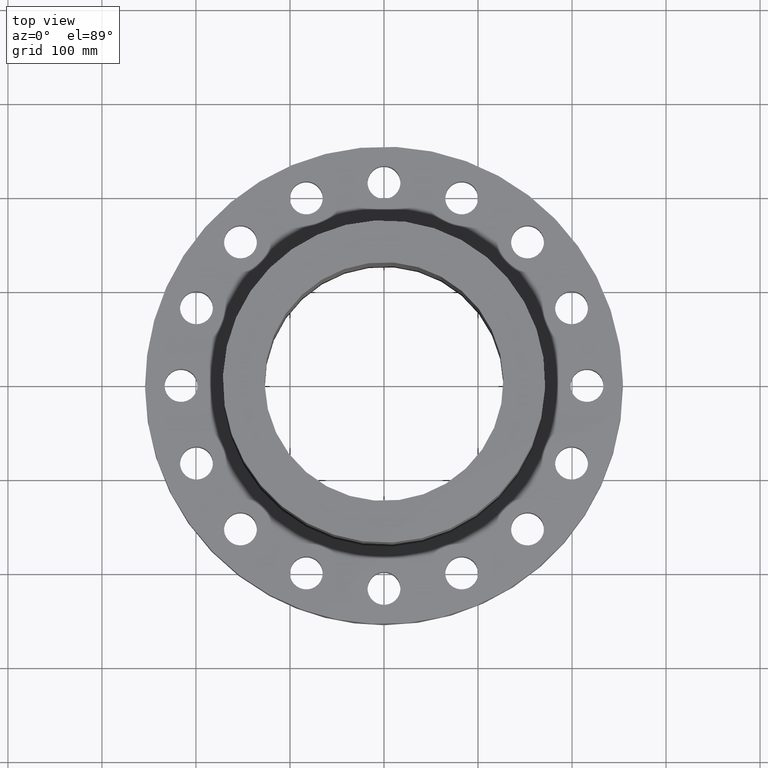
[diagram: clean part render]
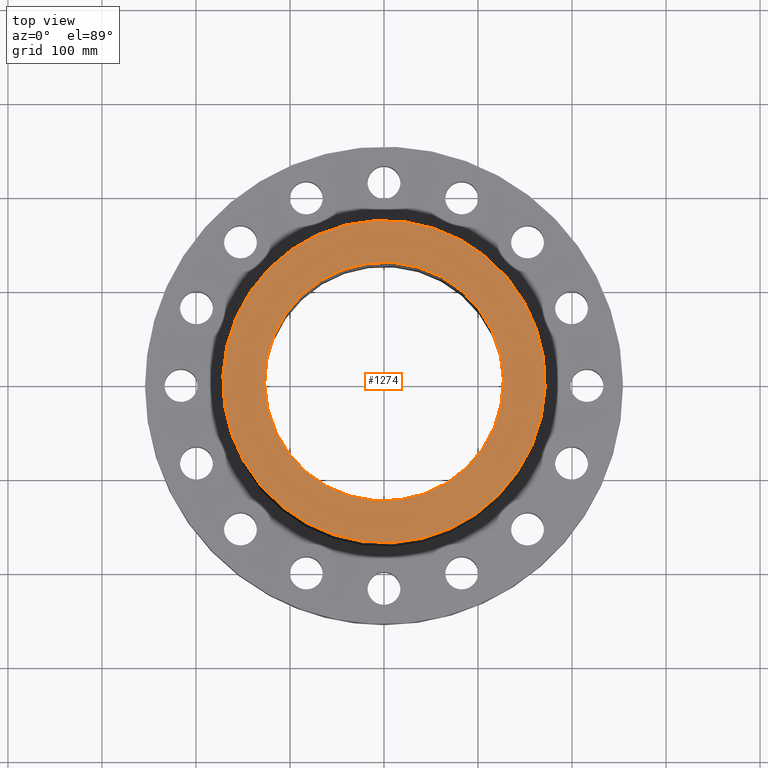
[diagram: same view with one face highlighted and labeled with its STEP entity id]
A machine part, top view. The second image highlights one B-rep face of the part: STEP entity #1274.
In plain terms, the highlighted planar face has unit normal (0, 0, -1).
Its self-contained STEP definition (entity closure, byte-faithful):
#515=AXIS2_PLACEMENT_3D('Circle Axis2P3D',#513,#514,$) ;
#534=AXIS2_PLACEMENT_3D('Circle Axis2P3D',#532,#533,$) ;
#1250=AXIS2_PLACEMENT_3D('Plane Axis2P3D',#1247,#1248,#1249) ;
#1258=AXIS2_PLACEMENT_3D('Circle Axis2P3D',#1256,#1257,$) ;
#1267=AXIS2_PLACEMENT_3D('Circle Axis2P3D',#1265,#1266,$) ;
#510=CARTESIAN_POINT('Vertex',(3.23612238559,5.92368229278,11.75)) ;
#513=CARTESIAN_POINT('Axis2P3D Location',(0.,0.,11.75)) ;
#517=CARTESIAN_POINT('Vertex',(-3.23612238559,-5.92368229278,11.75)) ;
#532=CARTESIAN_POINT('Axis2P3D Location',(0.,0.,11.75)) ;
#1247=CARTESIAN_POINT('Axis2P3D Location',(0.,6.75000000003,11.75)) ;
#1256=CARTESIAN_POINT('Axis2P3D Location',(0.,0.,11.75)) ;
#1260=CARTESIAN_POINT('Vertex',(-2.39712769303,-4.38791280947,11.75)) ;
#1262=CARTESIAN_POINT('Vertex',(2.39712769303,4.38791280947,11.75)) ;
#1265=CARTESIAN_POINT('Axis2P3D Location',(0.,0.,11.75)) ;
#514=DIRECTION('Axis2P3D Direction',(0.,0.,-0.0393700787402)) ;
#533=DIRECTION('Axis2P3D Direction',(0.,0.,-0.0393700787402)) ;
#1248=DIRECTION('Axis2P3D Direction',(0.,0.,-0.0393700787402)) ;
#1249=DIRECTION('Axis2P3D XDirection',(0.0393700787402,0.,0.)) ;
#1257=DIRECTION('Axis2P3D Direction',(0.,0.,-0.0393700787402)) ;
#1266=DIRECTION('Axis2P3D Direction',(0.,0.,-0.0393700787402)) ;
#1253=ORIENTED_EDGE('',*,*,#519,.F.) ;
#1254=ORIENTED_EDGE('',*,*,#536,.F.) ;
#1271=ORIENTED_EDGE('',*,*,#1264,.T.) ;
#1272=ORIENTED_EDGE('',*,*,#1269,.T.) ;
#1273=FACE_BOUND('',#1270,.T.) ;
#1274=ADVANCED_FACE('PartBody',(#1255,#1273),#1251,.F.) ;
#516=CIRCLE('generated circle',#515,6.75000000003) ;
#535=CIRCLE('generated circle',#534,6.75000000003) ;
#1259=CIRCLE('generated circle',#1258,5.00000000002) ;
#1268=CIRCLE('generated circle',#1267,5.00000000002) ;
#519=EDGE_CURVE('',#511,#518,#516,.T.) ;
#536=EDGE_CURVE('',#518,#511,#535,.T.) ;
#1264=EDGE_CURVE('',#1261,#1263,#1259,.T.) ;
#1269=EDGE_CURVE('',#1263,#1261,#1268,.T.) ;
#1252=EDGE_LOOP('',(#1253,#1254)) ;
#1270=EDGE_LOOP('',(#1271,#1272)) ;
#1255=FACE_OUTER_BOUND('',#1252,.T.) ;
#1251=PLANE('',#1250) ;
#511=VERTEX_POINT('',#510) ;
#518=VERTEX_POINT('',#517) ;
#1261=VERTEX_POINT('',#1260) ;
#1263=VERTEX_POINT('',#1262) ;